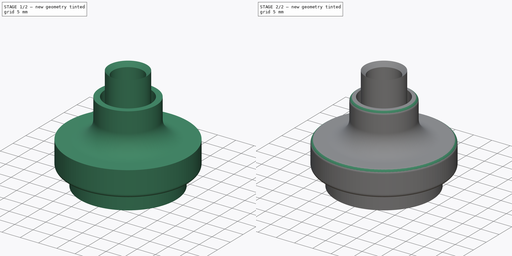
[diagram: build sequence overview — one tinted view per stage of 2, left to right]
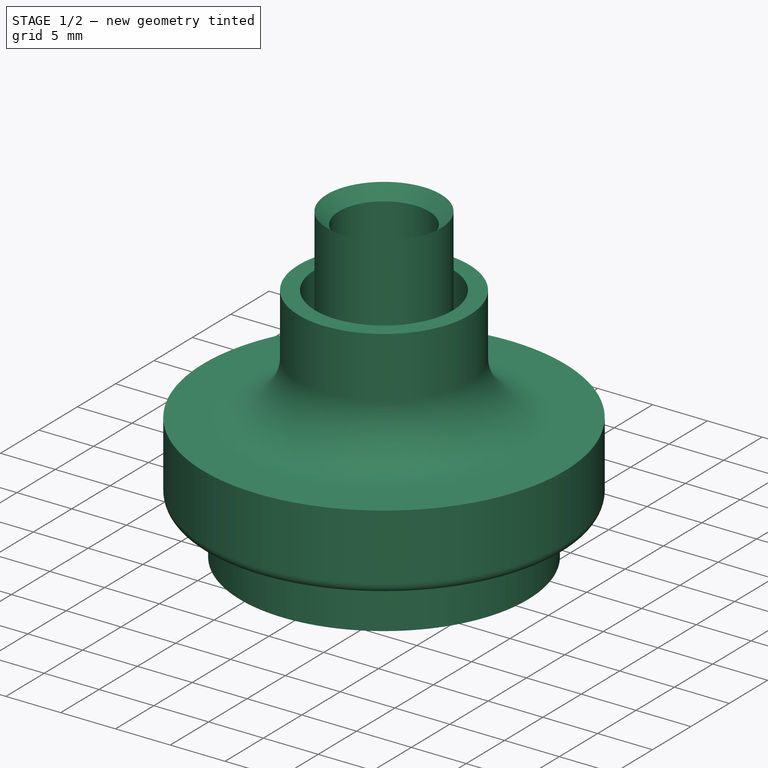
[diagram: stage 1 of 2 — iso view after this stage's code; geometry added in this stage tinted green]
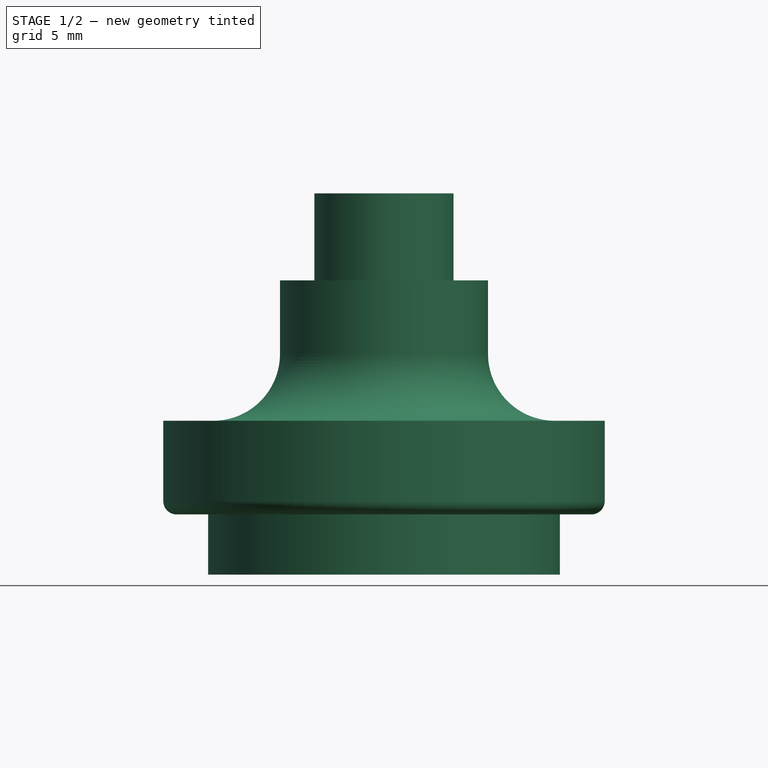
[diagram: stage 1 of 2 — front view after this stage's code; geometry added in this stage tinted green]
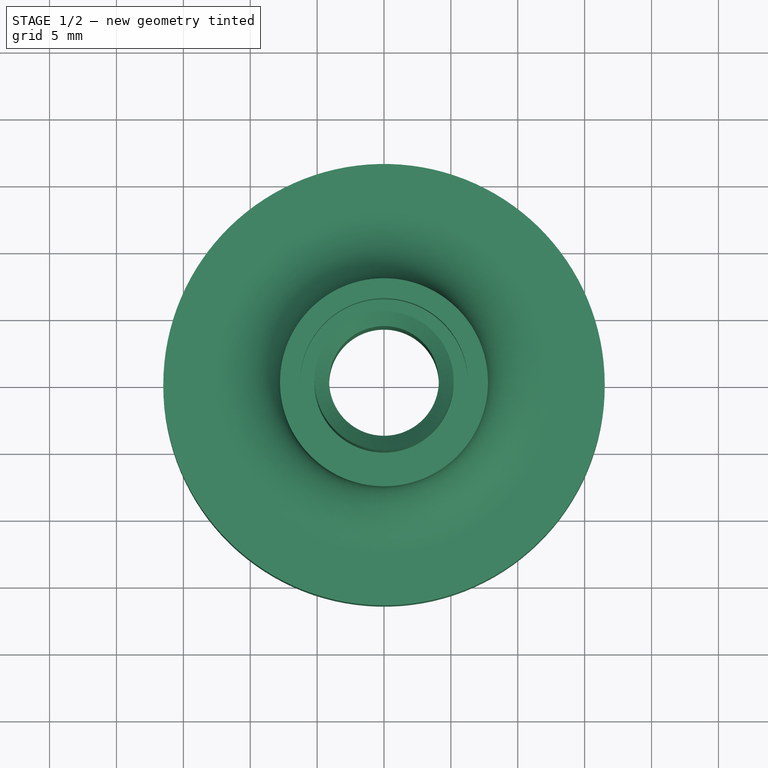
[diagram: stage 1 of 2 — top view after this stage's code; geometry added in this stage tinted green]
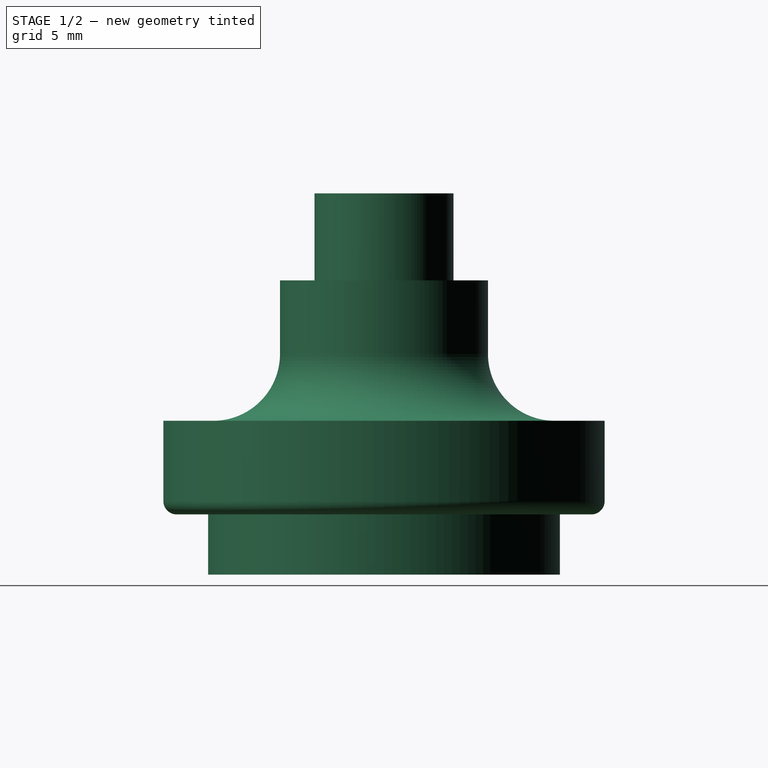
[diagram: stage 1 of 2 — right view after this stage's code; geometry added in this stage tinted green]
FCSTD DOCUMENT  (FreeCAD 0.18R16149 (Git))
Label: Funnel_constrained
License: All rights reserved
LicenseURL: http://en.wikipedia.org/wiki/All_rights_reserved
objects: PartDesign::Fillet×3, Sketcher::SketchObject×1, PartDesign::Revolution×1, PartDesign::Body×1
note: 7 computed .brp shape members not serialized (recipe doc carries the construction recipe); baked Part::Feature solids carry a one-line shape summary decoded from their .brp

FEATURE [Sketcher::SketchObject] Sketch  label="Cut through"
  MapMode = 5
  Placement = pos=(0,0,0) rot=(1,0,0;1.5708rad)
  Support = -> [XZ_Plane]
  sketch-geometry (15):
    g0: LineSegment StartX=4.1 StartY=27.4 StartZ=0 EndX=4.1 EndY=12 EndZ=0
    g1: LineSegment StartX=4.1 StartY=12 StartZ=0 EndX=13.15 EndY=0 EndZ=0
    g2: LineSegment StartX=13.15 StartY=0 StartZ=0 EndX=13.15 EndY=8.5 EndZ=0
    g3: LineSegment StartX=13.15 StartY=8.5 StartZ=0 EndX=15 EndY=8.5 EndZ=0
    g4: LineSegment StartX=15 StartY=8.5 StartZ=0 EndX=15 EndY=4.5 EndZ=0
    g5: LineSegment StartX=15 StartY=4.5 StartZ=0 EndX=16.5 EndY=4.5 EndZ=0
    g6: LineSegment StartX=16.5 StartY=4.5 StartZ=0 EndX=16.5 EndY=11.5 EndZ=0
    g7: LineSegment StartX=4.1 StartY=27.4 StartZ=0 EndX=5.2 EndY=28.5 EndZ=0
    g8: LineSegment StartX=5.2 StartY=28.5 StartZ=0 EndX=5.2 EndY=18 EndZ=0
    g9: LineSegment StartX=5.2 StartY=18 StartZ=0 EndX=6.275 EndY=18 EndZ=0
    g10: LineSegment StartX=6.275 StartY=18 StartZ=0 EndX=6.275 EndY=22 EndZ=0
    g11: LineSegment StartX=6.275 StartY=22 StartZ=0 EndX=7.775 EndY=22 EndZ=0
    g12: LineSegment StartX=7.775 StartY=22 StartZ=0 EndX=7.775 EndY=16.5 EndZ=0
    g13: ArcOfCircle CenterX=12.775 CenterY=16.5 CenterZ=0 NormalX=0 NormalY=0 NormalZ=1 AngleXU=0 Radius=5 StartAngle=3.14159 EndAngle=4.71239
    g14: LineSegment StartX=16.5 StartY=11.5 StartZ=0 EndX=12.775 EndY=11.5 EndZ=0
  constraints (45):
    c: Vertical(g0)
    c: Coincident(g1,g0)
    c: Vertical(g2)
    c: Coincident(g3,g2)
    c: Coincident(g4,g3)
    c: Coincident(g5,g4)
    c: Coincident(g6,g5)
    c: Vertical(g6)
    c: Coincident(g7,g0)
    c: Coincident(g8,g7)
    c: Coincident(g9,g8)
    c: Coincident(g10,g9)
    c: Coincident(g11,g10)
    c: Coincident(g12,g11)
    c: Vertical(g12)
    c: PointOnObject(g2,g-1)
    c: DistanceX(g-1,g2) = 13.15
    c: DistanceY(g6,g6) = 7
    c: Horizontal(g3)
    c: Vertical(g4)
    c: Horizontal(g9)
    c: Vertical(g8)
    c: Vertical(g10)
    c: Horizontal(g11)
    c: DistanceX(g7,g7) = 1.1
    c: DistanceY(g10,g10) = 4
    c: DistanceX(g11,g11) = 1.5
    c: Horizontal(g5)
    c: DistanceX(g5,g5) = 1.5
    c: DistanceX(g-1,g7) = 5.2
    c: Angle(g7,g8) = 0.785398
    c: DistanceY(g-1,g0) = 12
    c: DistanceY(g-1,g7) = 28.5
    c: DistanceY(g10,g7) = 6.5
    c: Coincident(g13,g12)
    c: Coincident(g14,g6)
    c: Radius(g13) = 5
    c: Tangent(g12,g13,g12) = -1.5708
    c: Horizontal(g14)
    c: Tangent(g14,g13) = 1.5708
    c: DistanceY(g-1,g5) = 4.5
    c: DistanceY(g4,g3) = 4
    c: Coincident(g1,g2)
    c: DistanceX(g-1,g3) = 15
    c: DistanceX(g-1,g9) = 6.275
FEATURE [PartDesign::Revolution] Revolution
  Angle = 360
  Axis = (0,-2e-16,1)
  Base = (0,0,0)
  Placement = pos=(0,0,0) rot=(1,0,0;1.5708rad)
  Profile = -> Sketch
  ReferenceAxis = -> Sketch [V_Axis]
FEATURE [PartDesign::Fillet] Fillet
  Base = -> Revolution [Edge11]
  BaseFeature = -> Revolution
  Placement = pos=(0,0,0) rot=(1,0,0;1.5708rad)
  Radius = 1
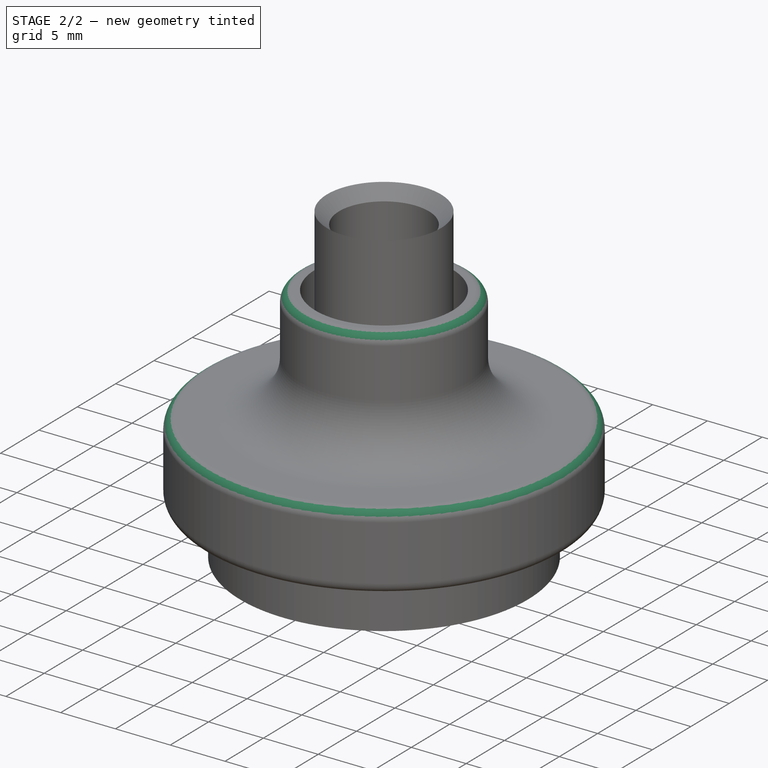
[diagram: stage 2 of 2 — iso view after this stage's code; geometry added in this stage tinted green]
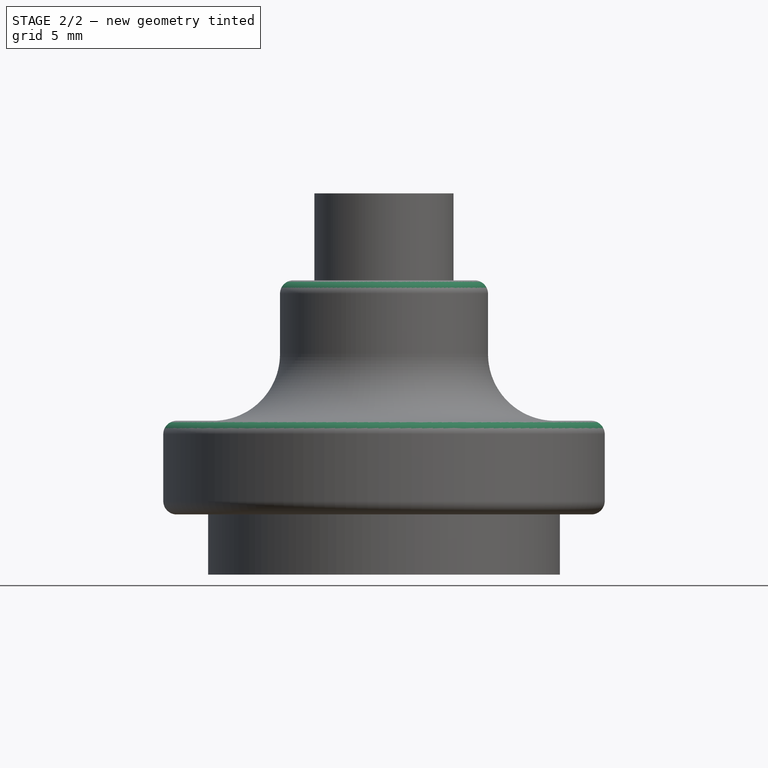
[diagram: stage 2 of 2 — front view after this stage's code; geometry added in this stage tinted green]
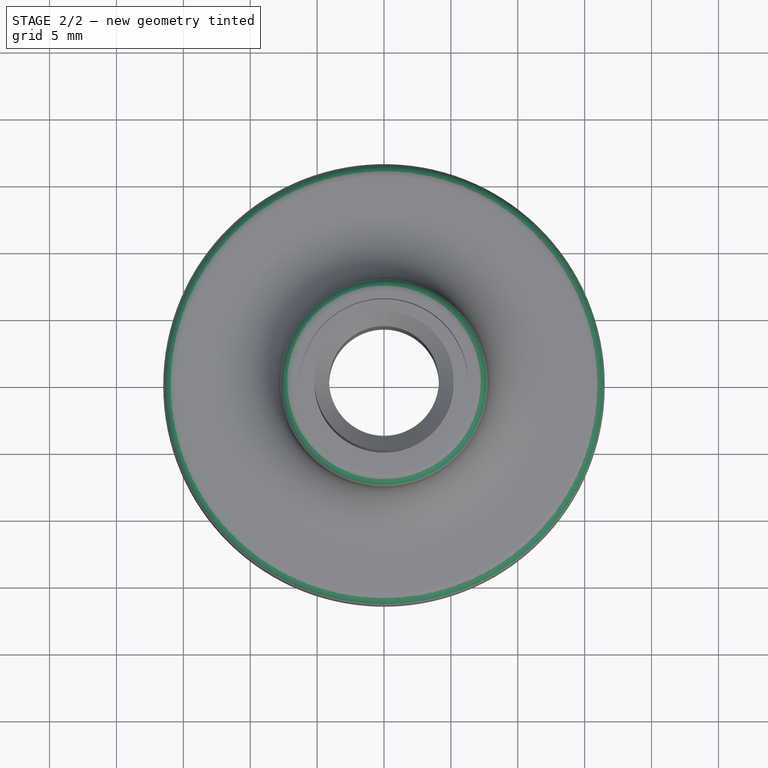
[diagram: stage 2 of 2 — top view after this stage's code; geometry added in this stage tinted green]
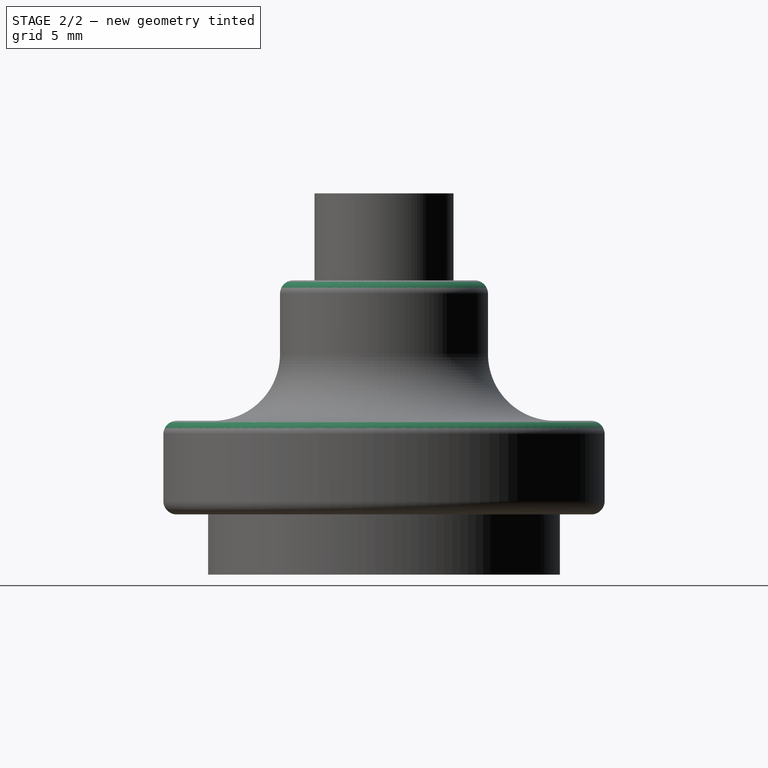
[diagram: stage 2 of 2 — right view after this stage's code; geometry added in this stage tinted green]
FEATURE [PartDesign::Fillet] Fillet001
  Base = -> Fillet [Edge8]
  BaseFeature = -> Fillet
  Placement = pos=(0,0,0) rot=(1,0,0;1.5708rad)
  Radius = 1
FEATURE [PartDesign::Fillet] Fillet002
  Base = -> Fillet001 [Edge14]
  BaseFeature = -> Fillet001
  Placement = pos=(0,0,0) rot=(1,0,0;1.5708rad)
  Radius = 1
FEATURE [PartDesign::Body] Body
  Group = -> [Sketch,Revolution,Fillet,Fillet001,Fillet002]
  Origin = -> Origin
  Tip = -> Fillet002
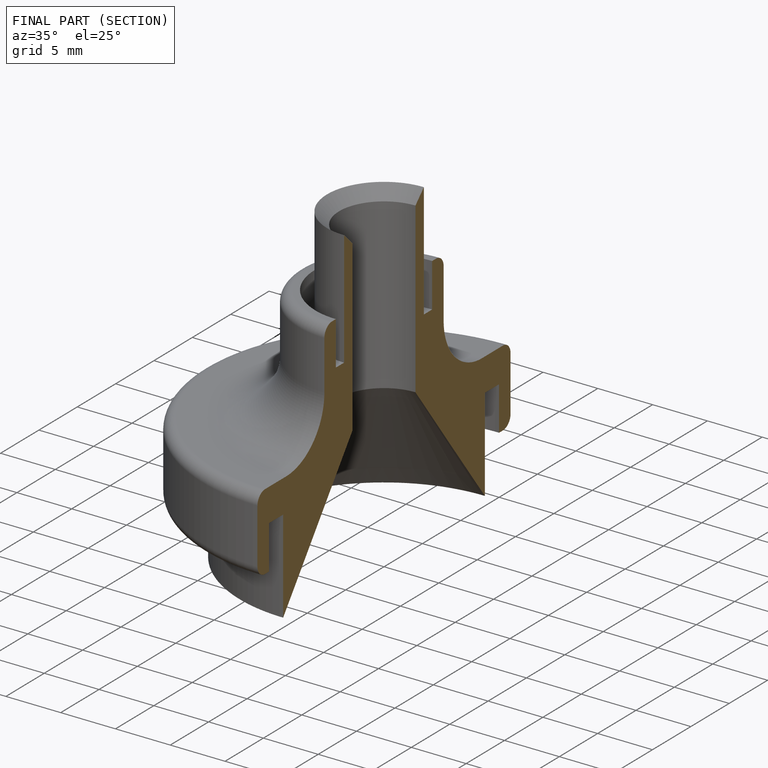
[diagram: finished part — half-section view (interior)]
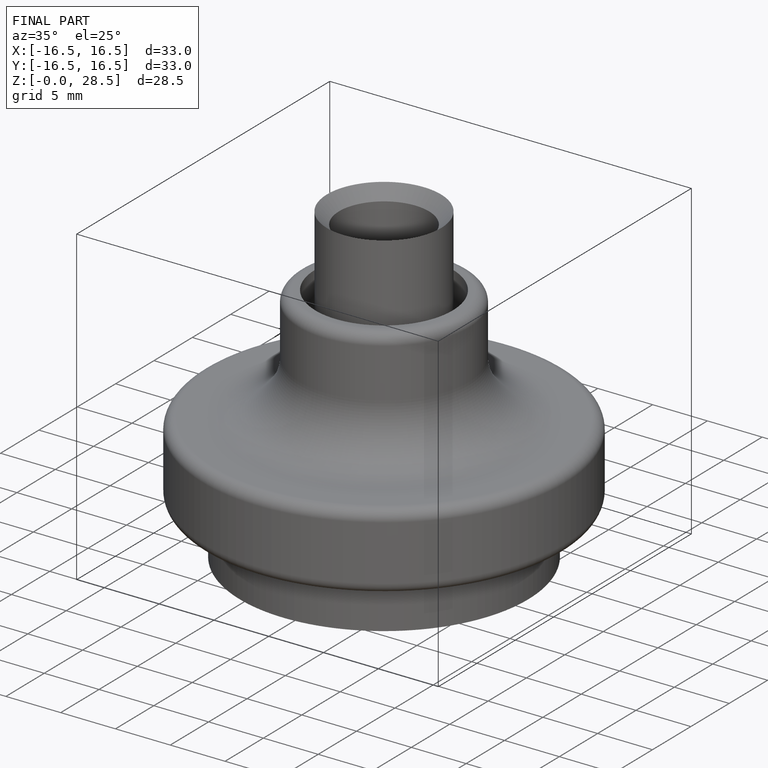
[diagram: finished part — iso view with bounding-box wireframe]
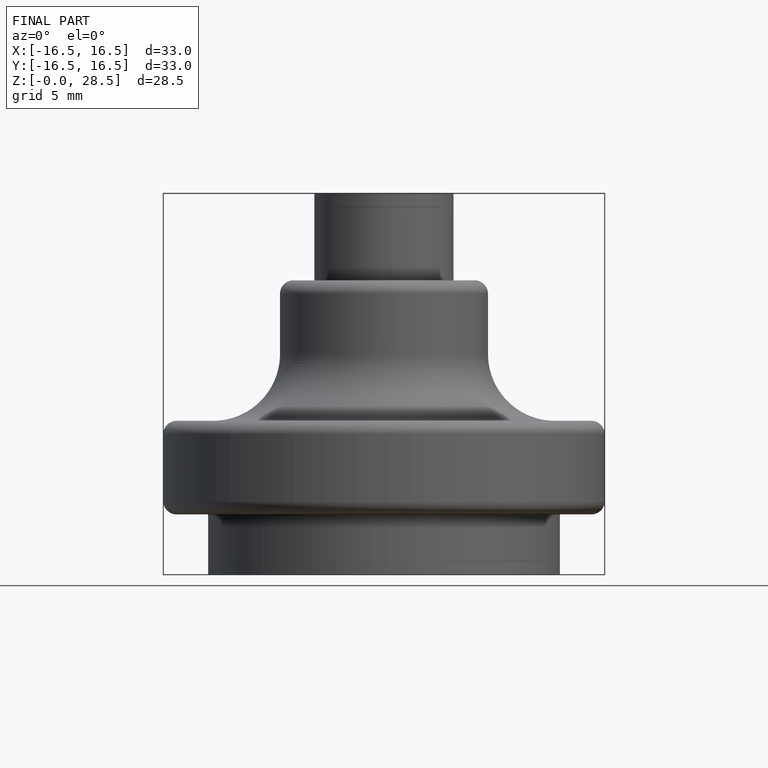
[diagram: finished part — front view with bounding-box wireframe]
